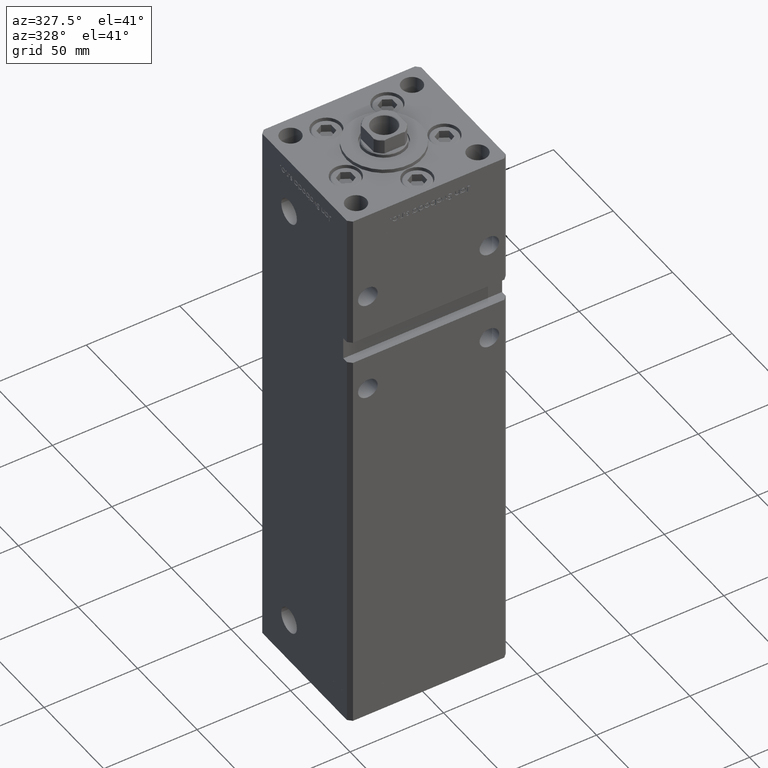
[diagram: clean part render]
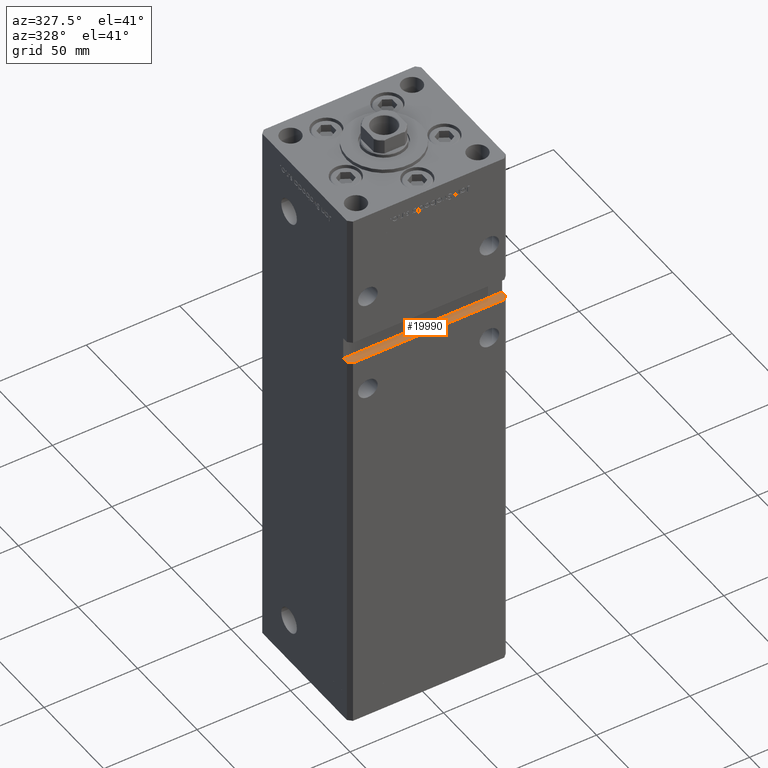
[diagram: same view with one face highlighted and labeled with its STEP entity id]
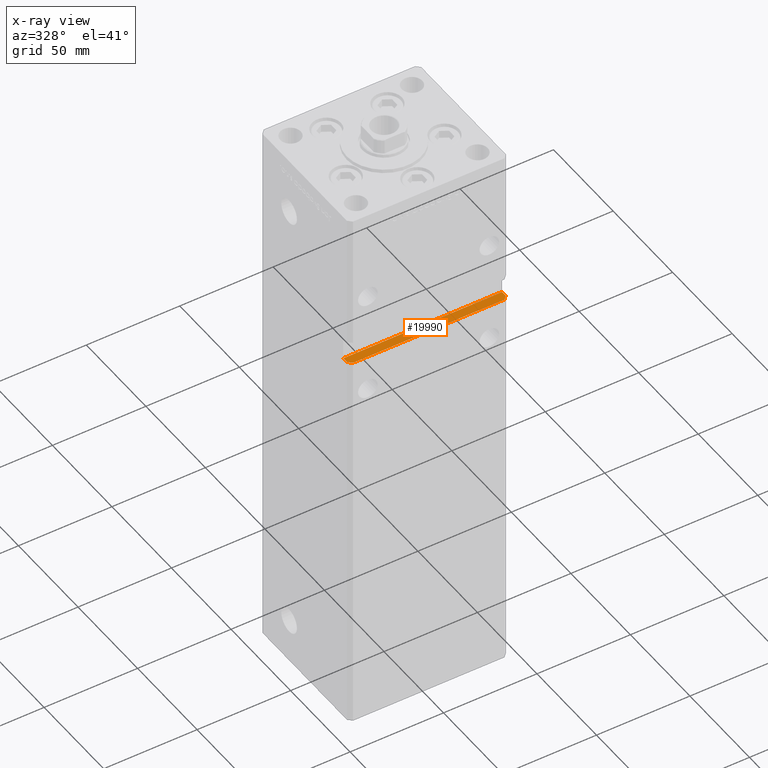
[diagram: x-ray of the same camera — body ghosted, the highlighted face saturated]
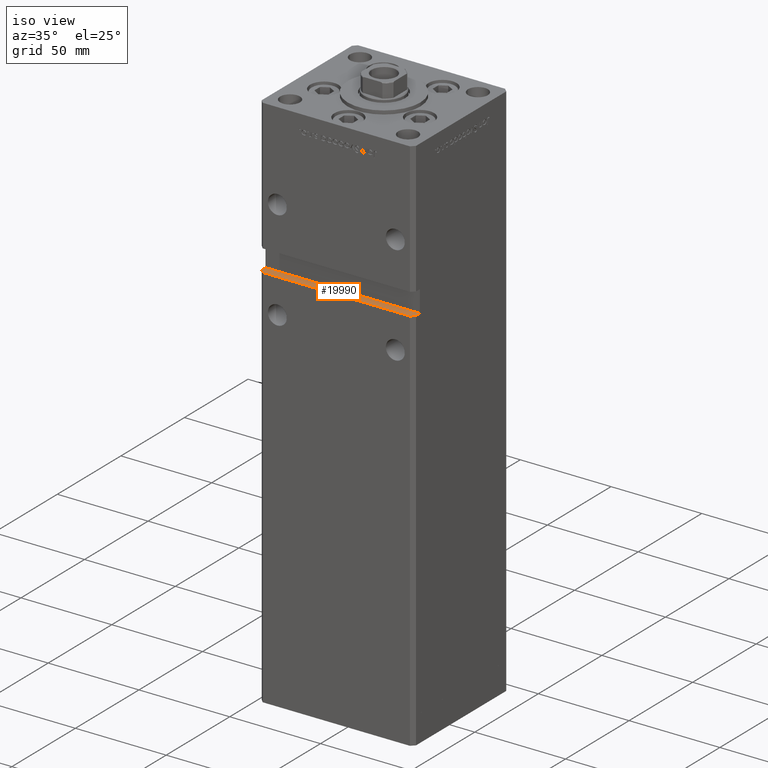
[diagram: same view with one face highlighted and labeled with its STEP entity id]
A machine part, auxiliary view. The second image highlights one B-rep face of the part: STEP entity #19990.
The next image is the same camera in x-ray: the body ghosted, the highlighted face saturated — about 0% of this face is hidden behind the body in this view.
A second angle (iso view) of the same face is appended — the face is thin or edge-on in the first view.
In plain terms, the highlighted planar face has unit normal (0, 0, -1).
Its self-contained STEP definition (entity closure, byte-faithful):
#650 = LINE ( 'NONE', #29401, #6214 ) ;
#1075 = VERTEX_POINT ( 'NONE', #35873 ) ;
#1446 = EDGE_LOOP ( 'NONE', ( #25645, #37364, #10488, #14045, #4864, #11711 ) ) ;
#3082 = VECTOR ( 'NONE', #39578, 1000.000000000000000 ) ;
#4864 = ORIENTED_EDGE ( 'NONE', *, *, #23718, .T. ) ;
#5999 = CARTESIAN_POINT ( 'NONE',  ( -40.49999999999998579, -37.50000000000000711, 199.0000000000000000 ) ) ;
#6120 = CARTESIAN_POINT ( 'NONE',  ( 42.49999999999998579, -32.50000000000000000, 199.0000000000000000 ) ) ;
#6214 = VECTOR ( 'NONE', #21604, 1000.000000000000114 ) ;
#7351 = LINE ( 'NONE', #22691, #49095 ) ;
#8265 = CARTESIAN_POINT ( 'NONE',  ( -42.49999999999998579, -32.50000000000000711, 199.0000000000000000 ) ) ;
#8861 = LINE ( 'NONE', #42215, #34357 ) ;
#9888 = VERTEX_POINT ( 'NONE', #42898 ) ;
#10488 = ORIENTED_EDGE ( 'NONE', *, *, #13856, .F. ) ;
#11711 = ORIENTED_EDGE ( 'NONE', *, *, #21671, .F. ) ;
#13856 = EDGE_CURVE ( 'NONE', #44392, #1075, #8861, .T. ) ;
#14045 = ORIENTED_EDGE ( 'NONE', *, *, #17798, .F. ) ;
#15657 = AXIS2_PLACEMENT_3D ( 'NONE', #50455, #20878, #25962 ) ;
#17195 = DIRECTION ( 'NONE',  ( -0.000000000000000000, -1.000000000000000000, -0.000000000000000000 ) ) ;
#17798 = EDGE_CURVE ( 'NONE', #38404, #44392, #7351, .T. ) ;
#19528 = EDGE_CURVE ( 'NONE', #9888, #1075, #650, .T. ) ;
#19873 = DIRECTION ( 'NONE',  ( -0.000000000000000000, -1.000000000000000000, -0.000000000000000000 ) ) ;
#19990 = ADVANCED_FACE ( 'NONE', ( #25167 ), #50183, .F. ) ;
#20087 = VECTOR ( 'NONE', #19873, 1000.000000000000000 ) ;
#20878 = DIRECTION ( 'NONE',  ( 0.000000000000000000, 0.000000000000000000, -1.000000000000000000 ) ) ;
#21604 = DIRECTION ( 'NONE',  ( 0.7071067811865474617, 0.7071067811865474617, 0.000000000000000000 ) ) ;
#21671 = EDGE_CURVE ( 'NONE', #49562, #42331, #30079, .T. ) ;
#22691 = CARTESIAN_POINT ( 'NONE',  ( -42.49999999999998579, -32.50000000000000711, 199.0000000000000000 ) ) ;
#23718 = EDGE_CURVE ( 'NONE', #38404, #42331, #53197, .T. ) ;
#25167 = FACE_OUTER_BOUND ( 'NONE', #1446, .T. ) ;
#25645 = ORIENTED_EDGE ( 'NONE', *, *, #34503, .T. ) ;
#25962 = DIRECTION ( 'NONE',  ( -1.000000000000000000, 0.000000000000000000, -0.000000000000000000 ) ) ;
#26032 = DIRECTION ( 'NONE',  ( -0.7071067811865474617, 0.7071067811865474617, 0.000000000000000000 ) ) ;
#29401 = CARTESIAN_POINT ( 'NONE',  ( 42.49999999999998579, -35.50000000000000711, 199.0000000000000000 ) ) ;
#30079 = LINE ( 'NONE', #46476, #49188 ) ;
#31850 = DIRECTION ( 'NONE',  ( 1.000000000000000000, 0.000000000000000000, 0.000000000000000000 ) ) ;
#34357 = VECTOR ( 'NONE', #17195, 1000.000000000000000 ) ;
#34503 = EDGE_CURVE ( 'NONE', #49562, #9888, #35292, .T. ) ;
#35292 = LINE ( 'NONE', #51699, #3082 ) ;
#35873 = CARTESIAN_POINT ( 'NONE',  ( 42.49999999999998579, -35.50000000000000711, 199.0000000000000000 ) ) ;
#37364 = ORIENTED_EDGE ( 'NONE', *, *, #19528, .T. ) ;
#38404 = VERTEX_POINT ( 'NONE', #41401 ) ;
#39578 = DIRECTION ( 'NONE',  ( 1.000000000000000000, 0.000000000000000000, 0.000000000000000000 ) ) ;
#41401 = CARTESIAN_POINT ( 'NONE',  ( -42.49999999999998579, -32.50000000000000711, 199.0000000000000000 ) ) ;
#42215 = CARTESIAN_POINT ( 'NONE',  ( 42.49999999999998579, -32.50000000000000711, 199.0000000000000000 ) ) ;
#42331 = VERTEX_POINT ( 'NONE', #52850 ) ;
#42898 = CARTESIAN_POINT ( 'NONE',  ( 40.49999999999998579, -37.50000000000000711, 199.0000000000000000 ) ) ;
#44392 = VERTEX_POINT ( 'NONE', #6120 ) ;
#46476 = CARTESIAN_POINT ( 'NONE',  ( -42.49999999999998579, -35.50000000000000711, 199.0000000000000000 ) ) ;
#49095 = VECTOR ( 'NONE', #31850, 1000.000000000000000 ) ;
#49188 = VECTOR ( 'NONE', #26032, 1000.000000000000114 ) ;
#49562 = VERTEX_POINT ( 'NONE', #5999 ) ;
#50183 = PLANE ( 'NONE',  #15657 ) ;
#50455 = CARTESIAN_POINT ( 'NONE',  ( -42.49999999999998579, -32.50000000000000711, 199.0000000000000000 ) ) ;
#51699 = CARTESIAN_POINT ( 'NONE',  ( -42.49999999999998579, -37.50000000000000711, 199.0000000000000000 ) ) ;
#52850 = CARTESIAN_POINT ( 'NONE',  ( -42.49999999999998579, -35.49999999999996447, 199.0000000000000000 ) ) ;
#53197 = LINE ( 'NONE', #8265, #20087 ) ;